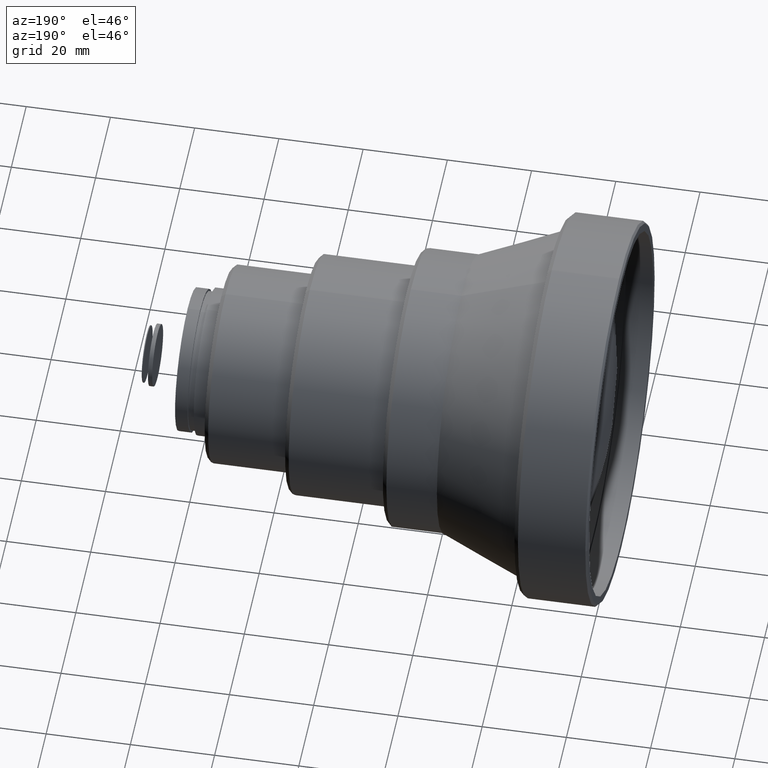
[diagram: clean part render]
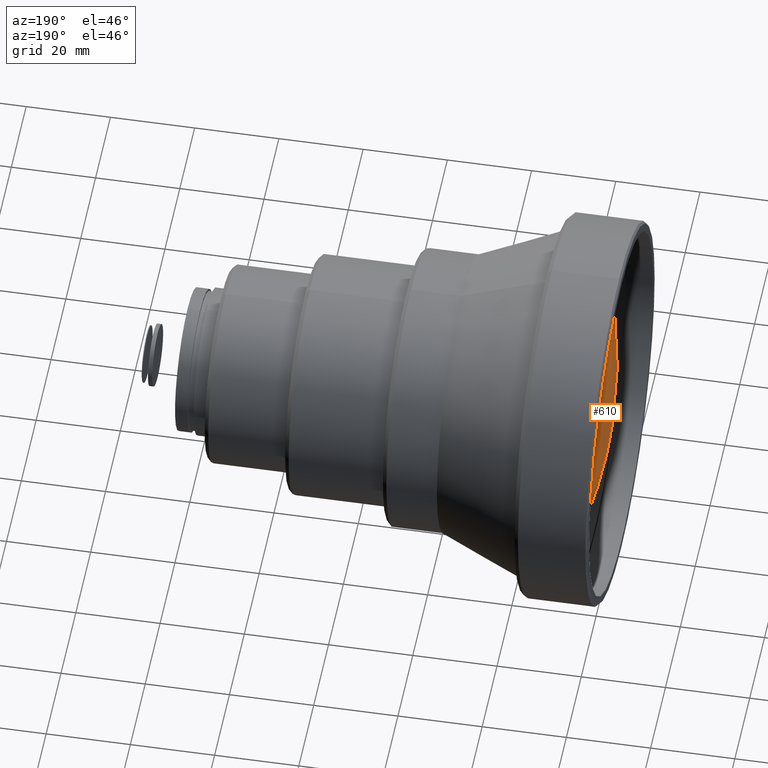
[diagram: same view with one face highlighted and labeled with its STEP entity id]
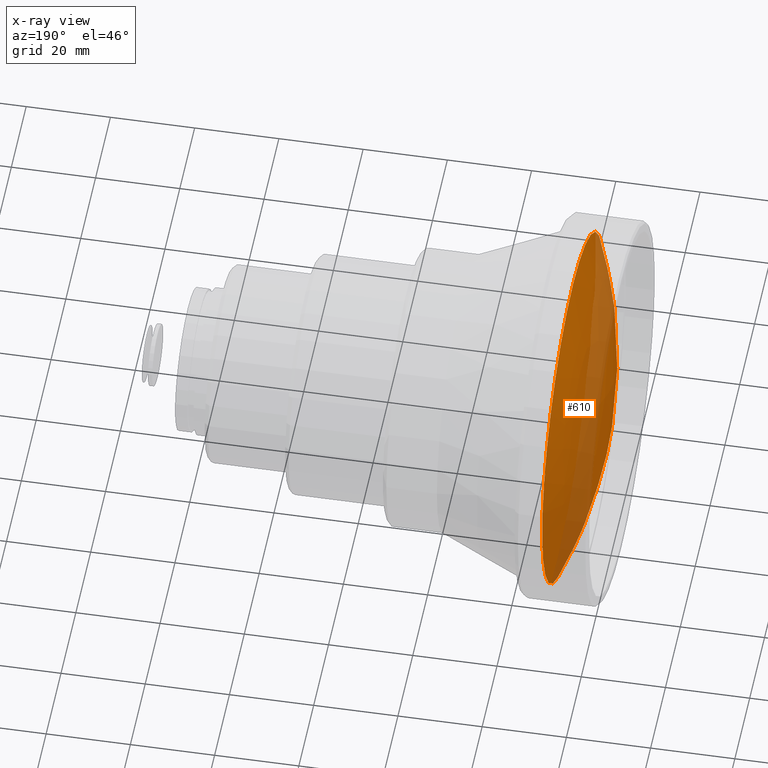
[diagram: x-ray of the same camera — body ghosted, the highlighted face saturated]
A machine part, auxiliary view. The second image highlights one B-rep face of the part: STEP entity #610.
The next image is the same camera in x-ray: the body ghosted, the highlighted face saturated — about 35% of this face is hidden behind the body in this view.
In plain terms, the highlighted face is a freeform B-spline surface patch.
Its self-contained STEP definition (entity closure, byte-faithful):
#25 = AXIS2_PLACEMENT_3D ( 'NONE', #573, #706, #38 ) ;
#32 = CARTESIAN_POINT ( 'NONE',  ( 17.64822494305094835, 42.14469408614510115, 38.11297469787338343 ) ) ;
#38 = DIRECTION ( 'NONE',  ( 0.000000000000000000, 0.000000000000000000, 1.000000000000000000 ) ) ;
#44 = CARTESIAN_POINT ( 'NONE',  ( 17.72333843068783921, -42.32286795605585894, 38.07833783191616561 ) ) ;
#103 = CARTESIAN_POINT ( 'NONE',  ( 17.81009871615539453, -42.32286795605585894, -38.26592523585217265 ) ) ;
#114 = CARTESIAN_POINT ( 'NONE',  ( 9.002876408520767981, 0.000000000000000000, 41.53221910664256455 ) ) ;
#117 = VERTEX_POINT ( 'NONE', #114 ) ;
#160 = CARTESIAN_POINT ( 'NONE',  ( -6.715904475607134216, -15.10963826692569789, 15.32605364564862960 ) ) ;
#183 = CIRCLE ( 'NONE', #25, 41.53221910664256455 ) ;
#199 =( BOUNDED_SURFACE ( )  B_SPLINE_SURFACE ( 3, 3, ( 
 ( #419, #691, #498, #32 ),
 ( #292, #827, #226, #830 ),
 ( #500, #759, #160, #763 ),
 ( #103, #362, #767, #44 ) ),
 .UNSPECIFIED., .F., .F., .F. ) 
 B_SPLINE_SURFACE_WITH_KNOTS ( ( 4, 4 ),
 ( 4, 4 ),
 ( 0.000000000000000000, 1.000000000000000000 ),
 ( 0.000000000000000000, 1.000000000000000000 ),
 .UNSPECIFIED. ) 
 GEOMETRIC_REPRESENTATION_ITEM ( )  RATIONAL_B_SPLINE_SURFACE ( (
 ( 1.000000000000000000, 0.9384166616224672852, 0.9384166616224672852, 1.000000000000000000),
 ( 0.9380172811284777090, 0.8802510455007693801, 0.8802510455007693801, 0.9380172811284777090),
 ( 0.9380172811284777090, 0.8802510455007693801, 0.8802510455007693801, 0.9380172811284777090),
 ( 1.000000000000000000, 0.9384166616224672852, 0.9384166616224672852, 1.000000000000000000) ) ) 
 REPRESENTATION_ITEM ( '' )  SURFACE ( )  );
#226 = CARTESIAN_POINT ( 'NONE',  ( -6.746267418012839023, 14.90671066450786242, 15.33040200944023823 ) ) ;
#292 = CARTESIAN_POINT ( 'NONE',  ( 6.293698020668911042, 14.90671066450785887, -43.60822436751459463 ) ) ;
#362 = CARTESIAN_POINT ( 'NONE',  ( 6.398434221997834292, -42.32286795605585894, -13.66578629225115549 ) ) ;
#419 = CARTESIAN_POINT ( 'NONE',  ( 17.73506414751942373, 42.14469408614510115, -38.30073273530169331 ) ) ;
#498 = CARTESIAN_POINT ( 'NONE',  ( 6.282173359409908286, 42.14469408614510115, 13.46456175651363907 ) ) ;
#500 = CARTESIAN_POINT ( 'NONE',  ( 6.320362265967859550, -15.10963826692569256, -43.59585519260711095 ) ) ;
#564 = FACE_OUTER_BOUND ( 'NONE', #802, .T. ) ;
#573 = CARTESIAN_POINT ( 'NONE',  ( 9.002876408520767981, 0.000000000000000000, 0.000000000000000000 ) ) ;
#610 = ADVANCED_FACE ( 'NONE', ( #564 ), #199, .T. ) ;
#626 = EDGE_CURVE ( 'NONE', #117, #117, #183, .T. ) ;
#691 = CARTESIAN_POINT ( 'NONE',  ( 6.313019360630133470, 42.14469408614510115, -13.67821698211199255 ) ) ;
#706 = DIRECTION ( 'NONE',  ( -1.000000000000000000, -0.000000000000000000, -0.000000000000000000 ) ) ;
#759 = CARTESIAN_POINT ( 'NONE',  ( -6.680793977545347317, -15.10963826692569789, -15.56924696366430361 ) ) ;
#763 = CARTESIAN_POINT ( 'NONE',  ( 6.221517436830706238, -15.10963826692569256, 43.38213938023498883 ) ) ;
#767 = CARTESIAN_POINT ( 'NONE',  ( 6.367616253457247133, -42.32286795605585894, 13.45232523537011637 ) ) ;
#802 = EDGE_LOOP ( 'NONE', ( #853 ) ) ;
#827 = CARTESIAN_POINT ( 'NONE',  ( -6.711146958272586893, 14.90671066450786242, -15.57366432715036986 ) ) ;
#830 = CARTESIAN_POINT ( 'NONE',  ( 6.194825146916612013, 14.90671066450785887, 43.39444791891334319 ) ) ;
#853 = ORIENTED_EDGE ( 'NONE', *, *, #626, .T. ) ;